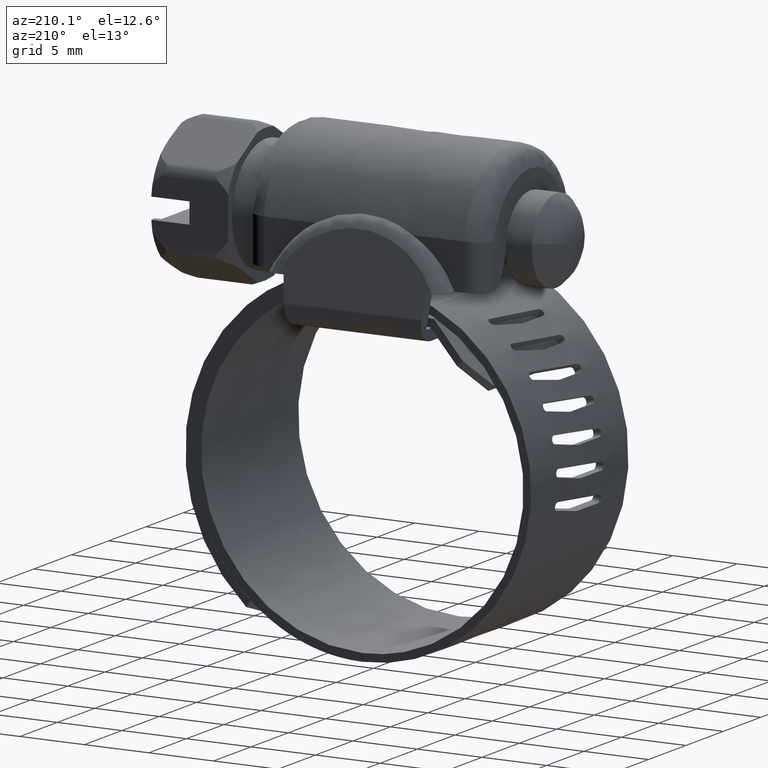
[diagram: clean part render]
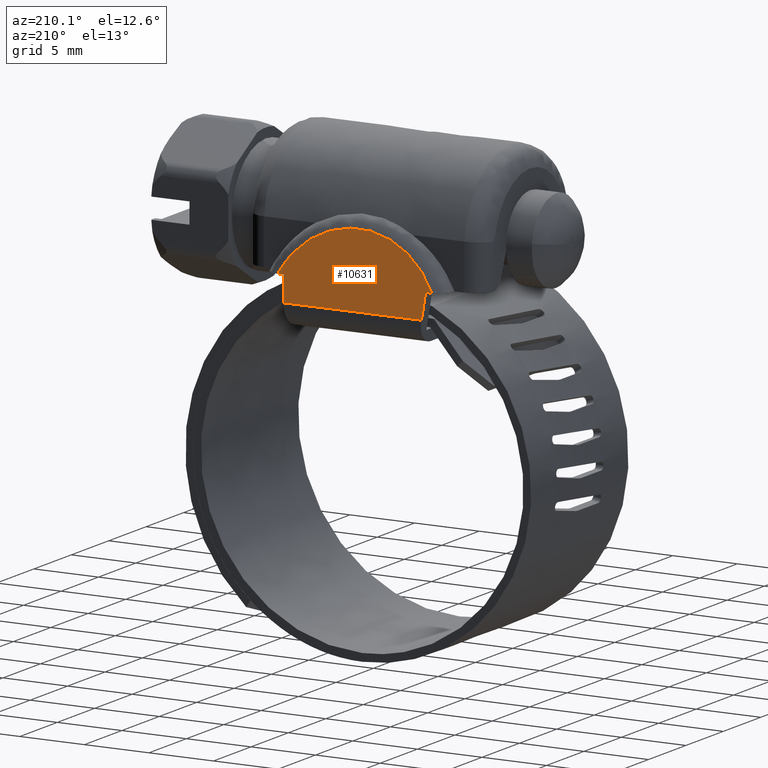
[diagram: same view with one face highlighted and labeled with its STEP entity id]
A machine part, auxiliary view. The second image highlights one B-rep face of the part: STEP entity #10631.
In plain terms, the highlighted face is a freeform B-spline surface patch.
Its self-contained STEP definition (entity closure, byte-faithful):
#9647=CARTESIAN_POINT('',(-5.344276520702330,7.807549492446740,11.208401248428160));
#9648=VERTEX_POINT('',#9647);
#9664=CARTESIAN_POINT('',(5.344276520702420,7.807549492446690,11.208401248428119));
#9665=VERTEX_POINT('',#9664);
#9666=CARTESIAN_POINT('',(5.344276520702420,7.807549492446690,11.208401248428119));
#9667=CARTESIAN_POINT('',(-5.344276520702330,7.807549492446740,11.208401248428160));
#9668=QUASI_UNIFORM_CURVE('',1,(#9666,#9667),.UNSPECIFIED.,.F.,.U.);
#9669=EDGE_CURVE('',#9665,#9648,#9668,.T.);
#10049=CARTESIAN_POINT('',(5.964274546191691,7.515887096035680,13.077083000000201));
#10050=VERTEX_POINT('',#10049);
#10076=CARTESIAN_POINT('',(-5.964274546191691,7.515887096035680,13.077083000000201));
#10077=VERTEX_POINT('',#10076);
#10078=CARTESIAN_POINT('',(-5.964274546191691,7.515887096035680,13.077083000000201));
#10079=CARTESIAN_POINT('',(-4.101574888512248,6.945540499392355,16.731295165618835));
#10080=CARTESIAN_POINT('',(2.153124E-015,6.945540499392355,16.731295165618839));
#10081=CARTESIAN_POINT('',(4.101574888512252,6.945540499392355,16.731295165618835));
#10082=CARTESIAN_POINT('',(5.964274546191691,7.515887096035680,13.077083000000201));
#10090=(BOUNDED_CURVE()B_SPLINE_CURVE(2,(#10078,#10079,#10080,#10081,#10082),.UNSPECIFIED.,.F.,.U.)B_SPLINE_CURVE_WITH_KNOTS((3,2,3),(0.0,0.500000000000000,1.0),.UNSPECIFIED.)CURVE()GEOMETRIC_REPRESENTATION_ITEM()RATIONAL_B_SPLINE_CURVE((1.0,0.852684743861974,1.0,0.852684743861974,1.0))REPRESENTATION_ITEM(''));
#10091=EDGE_CURVE('',#10077,#10050,#10090,.T.);
#10598=CARTESIAN_POINT('',(-6.560105438259712,6.902483235858930,17.007163167896639));
#10599=CARTESIAN_POINT('',(-6.560105438259712,7.850606794514998,10.932532999257729));
#10600=CARTESIAN_POINT('',(6.560105864857871,6.902483235858930,17.007163167896639));
#10601=CARTESIAN_POINT('',(6.560105864857871,7.850606794514998,10.932532999257729));
#10602=B_SPLINE_SURFACE_WITH_KNOTS('',1,1,((#10598,#10600),(#10599,#10601)),.UNSPECIFIED.,.F.,.F.,.U.,(2,2),(2,2),(0.0,6.148176149738773),(0.0,13.120211303117580),.UNSPECIFIED.);
#10603=CARTESIAN_POINT('',(5.500000000000100,7.515887096035680,13.077083000000201));
#10604=VERTEX_POINT('',#10603);
#10605=CARTESIAN_POINT('',(5.344276520702420,7.807549492446690,11.208401248428119));
#10606=CARTESIAN_POINT('',(5.500000000000100,7.515887096035680,13.077083000000201));
#10607=QUASI_UNIFORM_CURVE('',1,(#10605,#10606),.UNSPECIFIED.,.F.,.U.);
#10608=EDGE_CURVE('',#9665,#10604,#10607,.T.);
#10609=ORIENTED_EDGE('',*,*,#10608,.F.);
#10610=ORIENTED_EDGE('',*,*,#9669,.T.);
#10611=CARTESIAN_POINT('',(-5.500000000000000,7.515887096035680,13.077083000000201));
#10612=VERTEX_POINT('',#10611);
#10613=CARTESIAN_POINT('',(-5.500000000000000,7.515887096035680,13.077083000000201));
#10614=CARTESIAN_POINT('',(-5.344276520702330,7.807549492446740,11.208401248428160));
#10615=QUASI_UNIFORM_CURVE('',1,(#10613,#10614),.UNSPECIFIED.,.F.,.U.);
#10616=EDGE_CURVE('',#10612,#9648,#10615,.T.);
#10617=ORIENTED_EDGE('',*,*,#10616,.F.);
#10618=CARTESIAN_POINT('',(-5.964274546191691,7.515887096035680,13.077083000000201));
#10619=CARTESIAN_POINT('',(-5.500000000000000,7.515887096035680,13.077083000000201));
#10620=QUASI_UNIFORM_CURVE('',1,(#10618,#10619),.UNSPECIFIED.,.F.,.U.);
#10621=EDGE_CURVE('',#10077,#10612,#10620,.T.);
#10622=ORIENTED_EDGE('',*,*,#10621,.F.);
#10623=ORIENTED_EDGE('',*,*,#10091,.T.);
#10624=CARTESIAN_POINT('',(5.500000000000100,7.515887096035680,13.077083000000201));
#10625=CARTESIAN_POINT('',(5.964274546191691,7.515887096035680,13.077083000000201));
#10626=QUASI_UNIFORM_CURVE('',1,(#10624,#10625),.UNSPECIFIED.,.F.,.U.);
#10627=EDGE_CURVE('',#10604,#10050,#10626,.T.);
#10628=ORIENTED_EDGE('',*,*,#10627,.F.);
#10629=EDGE_LOOP('',(#10609,#10610,#10617,#10622,#10623,#10628));
#10630=FACE_OUTER_BOUND('',#10629,.T.);
#10631=ADVANCED_FACE('',(#10630),#10602,.F.);